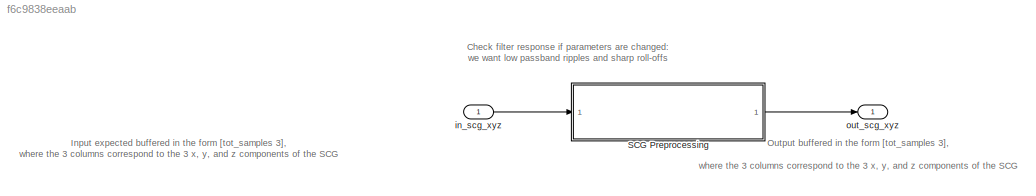
MODEL slx_f6c9838eeaab
KIND model
CONFIG AbsTol = auto
CONFIG EnableMultiTasking = off
CONFIG FixedStep = 1/fs
CONFIG MaxStep = 1/fs
CONFIG MinStep = auto
CONFIG RelTol = 1e-3
CONFIG SampleTimeConstraint = Unconstrained
CONFIG Solver = FixedStepDiscrete
CONFIG SolverName = FixedStepDiscrete
CONFIG StartTime = 0.0
CONFIG StopTime = param_sim_time
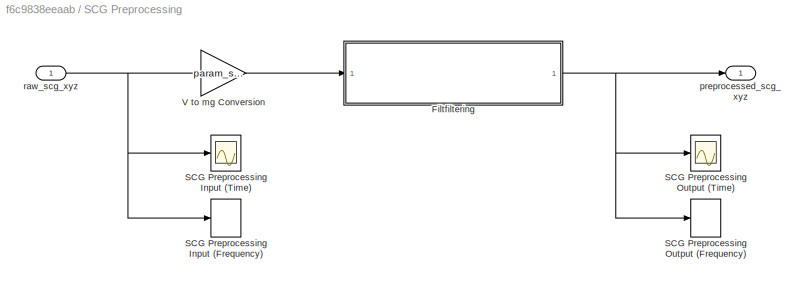
BLOCK [SubSystem] SCG Preprocessing
  Ports = [1, 1]
  RequestExecContextInheritance = off
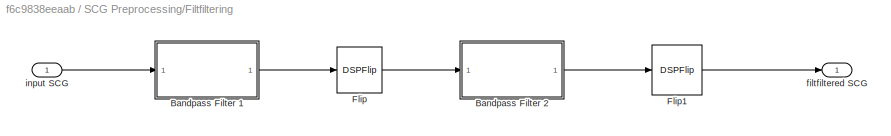
BLOCK [SubSystem] SCG Preprocessing/Filtfiltering
  Ports = [1, 1]
  RequestExecContextInheritance = off
BLOCK [Inport] SCG Preprocessing/Filtfiltering/ input SCG
  IconDisplay = Port number
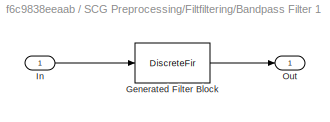
BLOCK [SubSystem] SCG Preprocessing/Filtfiltering/Bandpass Filter 1
  CopyFcn = fdesignblkfcn(gcbh, {'CopyFcn'});
  DialogController = fdesignblkfcn
  InitFcn = fdesignblkfcn(gcbh, {'InitFcn'});
  Ports = [1, 1]
  RequestExecContextInheritance = off
  UserDataPersistent = on
BLOCK [DiscreteFir] SCG Preprocessing/Filtfiltering/Bandpass Filter 1/Generated Filter Block
  Coefficients = [-0.0141280809748905063 0.00296128789229214984 0.00257104999710791246 0.00216178345802759894 0.00175552729414368662 0.00135185618919181523 0.000971465225508613001 0.000611761661220511233 0.000291406420521247295 4.82187739942602223e-06 -0.000231481095028285982 -0.000426883300566133911 -0.000566810793415535585 -0.000665092291782777567 -0.000708283395739302962 -0.000716103852974445468 -0.000671547633...<+17287ch>
  InputPortMap = u0
  InputProcessing = Columns as channels (frame based)
  OutputPortMap = o0
  Ports = [1, 1]
  Tag = BlockMethodSubSystem
BLOCK [Inport] SCG Preprocessing/Filtfiltering/Bandpass Filter 1/In
  IconDisplay = Port number
BLOCK [Outport] SCG Preprocessing/Filtfiltering/Bandpass Filter 1/Out
  IconDisplay = Port number
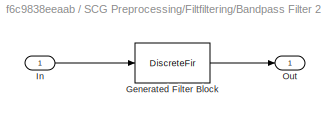
BLOCK [SubSystem] SCG Preprocessing/Filtfiltering/Bandpass Filter 2
  CopyFcn = fdesignblkfcn(gcbh, {'CopyFcn'});
  DialogController = fdesignblkfcn
  InitFcn = fdesignblkfcn(gcbh, {'InitFcn'});
  Ports = [1, 1]
  RequestExecContextInheritance = off
  UserDataPersistent = on
BLOCK [DiscreteFir] SCG Preprocessing/Filtfiltering/Bandpass Filter 2/Generated Filter Block
  Coefficients = [-0.0141280809748905063 0.00296128789229214984 0.00257104999710791246 0.00216178345802759894 0.00175552729414368662 0.00135185618919181523 0.000971465225508613001 0.000611761661220511233 0.000291406420521247295 4.82187739942602223e-06 -0.000231481095028285982 -0.000426883300566133911 -0.000566810793415535585 -0.000665092291782777567 -0.000708283395739302962 -0.000716103852974445468 -0.000671547633...<+17287ch>
  InputPortMap = u0
  InputProcessing = Columns as channels (frame based)
  OutputPortMap = o0
  Ports = [1, 1]
  Tag = BlockMethodSubSystem
BLOCK [Inport] SCG Preprocessing/Filtfiltering/Bandpass Filter 2/In
  IconDisplay = Port number
BLOCK [Outport] SCG Preprocessing/Filtfiltering/Bandpass Filter 2/Out
  IconDisplay = Port number
BLOCK [DSPFlip] SCG Preprocessing/Filtfiltering/Flip
BLOCK [DSPFlip] SCG Preprocessing/Filtfiltering/Flip1
BLOCK [Outport] SCG Preprocessing/Filtfiltering/filtfiltered SCG
  IconDisplay = Port number
BLOCK [SpectrumAnalyzer] SCG Preprocessing/SCG Preprocessing Input (Frequency)
  Commented = on
  Ports = [1]
  ScopeSpecificationString = spbscopes.SpectrumAnalyzerBlockCfg('CurrentConfiguration', extmgr.ConfigurationSet(extmgr.Configuration('Core','General UI',true),extmgr.Configuration('Core','Source UI',true),extmgr.Configuration('Sources','WiredSimulink',true),extmgr.Configuration('Sources','SimulinkEvent',false),extmgr.Configuration('Sources','Simulink',false),extmgr.Configuration('Sources','SPTool',false),extmgr.Configuration(...<+3857ch>
BLOCK [Scope] SCG Preprocessing/SCG Preprocessing Input (Time)
  Commented = on
  Floating = off
  NumInputPorts = 1
  Ports = [1]
  ScopeSpecificationString = Simulink.scopes.TimeScopeBlockCfg('CurrentConfiguration', extmgr.ConfigurationSet(extmgr.Configuration('Core','General UI',true),extmgr.Configuration('Core','Source UI',true),extmgr.Configuration('Sources','WiredSimulink',true,'DataLoggingMaxPoints','tot_samples','DataLoggingVariableName','ScopeData4'),extmgr.Configuration('Visuals','Time Domain',true,'InputProcessing','FrameProcessing','Serialize...<+1769ch>
BLOCK [SpectrumAnalyzer] SCG Preprocessing/SCG Preprocessing Output (Frequency)
  Commented = on
  Ports = [1]
  ScopeSpecificationString = spbscopes.SpectrumAnalyzerBlockCfg('CurrentConfiguration', extmgr.ConfigurationSet(extmgr.Configuration('Core','General UI',true),extmgr.Configuration('Core','Source UI',true),extmgr.Configuration('Sources','WiredSimulink',true),extmgr.Configuration('Sources','SimulinkEvent',false),extmgr.Configuration('Sources','Simulink',false),extmgr.Configuration('Sources','SPTool',false),extmgr.Configuration(...<+3927ch>
BLOCK [Scope] SCG Preprocessing/SCG Preprocessing Output (Time)
  Commented = on
  Floating = off
  NumInputPorts = 1
  Ports = [1]
  ScopeSpecificationString = Simulink.scopes.TimeScopeBlockCfg('CurrentConfiguration', extmgr.ConfigurationSet(extmgr.Configuration('Core','General UI',true),extmgr.Configuration('Core','Source UI',true),extmgr.Configuration('Sources','WiredSimulink',true,'DataLoggingMaxPoints','tot_samples','DataLoggingVariableName','ScopeData5'),extmgr.Configuration('Visuals','Time Domain',true,'InputProcessing','FrameProcessing','Serialize...<+1803ch>
BLOCK [Gain] SCG Preprocessing/V to mg Conversion
  Gain = param_scg_gain_mg
  OutDataTypeStr = Inherit: Inherit via internal rule
  ParamDataTypeStr = Inherit: Inherit via internal rule
  SaturateOnIntegerOverflow = off
BLOCK [Outport] SCG Preprocessing/preprocessed_scg_xyz
  IconDisplay = Port number
BLOCK [Inport] SCG Preprocessing/raw_scg_xyz
  IconDisplay = Port number
BLOCK [Inport] in_scg_xyz
  IconDisplay = Port number
  SampleTime = 1/fs
BLOCK [Outport] out_scg_xyz
  IconDisplay = Port number
ANNOTATION (root): Check filter response if parameters are changed: we want low passband ripples and sharp roll-offs
ANNOTATION (root): Input expected buffered in the form [tot_samples 3], where the 3 columns correspond to the 3 x, y, and z components of the SCG
ANNOTATION (root): Output buffered in the form [tot_samples 3], where the 3 columns correspond to the 3 x, y, and z components of the SCG
LINE SCG Preprocessing/Filtfiltering/ input SCG:1 -> SCG Preprocessing/Filtfiltering/Bandpass Filter 1:1
LINE SCG Preprocessing/Filtfiltering/Bandpass Filter 1:1 -> SCG Preprocessing/Filtfiltering/Flip:1
LINE SCG Preprocessing/Filtfiltering/Bandpass Filter 2:1 -> SCG Preprocessing/Filtfiltering/Flip1:1
LINE SCG Preprocessing/Filtfiltering/Flip1:1 -> SCG Preprocessing/Filtfiltering/filtfiltered SCG:1
LINE SCG Preprocessing/Filtfiltering/Flip:1 -> SCG Preprocessing/Filtfiltering/Bandpass Filter 2:1
NET SCG Preprocessing/Filtfiltering:1 -> SCG Preprocessing/SCG Preprocessing Output (Frequency):1, SCG Preprocessing/SCG Preprocessing Output (Time):1, SCG Preprocessing/preprocessed_scg_xyz:1
LINE SCG Preprocessing/V to mg Conversion:1 -> SCG Preprocessing/Filtfiltering:1
NET SCG Preprocessing/raw_scg_xyz:1 -> SCG Preprocessing/SCG Preprocessing Input (Frequency):1, SCG Preprocessing/SCG Preprocessing Input (Time):1, SCG Preprocessing/V to mg Conversion:1
LINE SCG Preprocessing:1 -> out_scg_xyz:1
LINE in_scg_xyz:1 -> SCG Preprocessing:1
note: NET lines group one-source signal fan-out (src -> all destinations, sorted); 1:1 wires keep LINE
